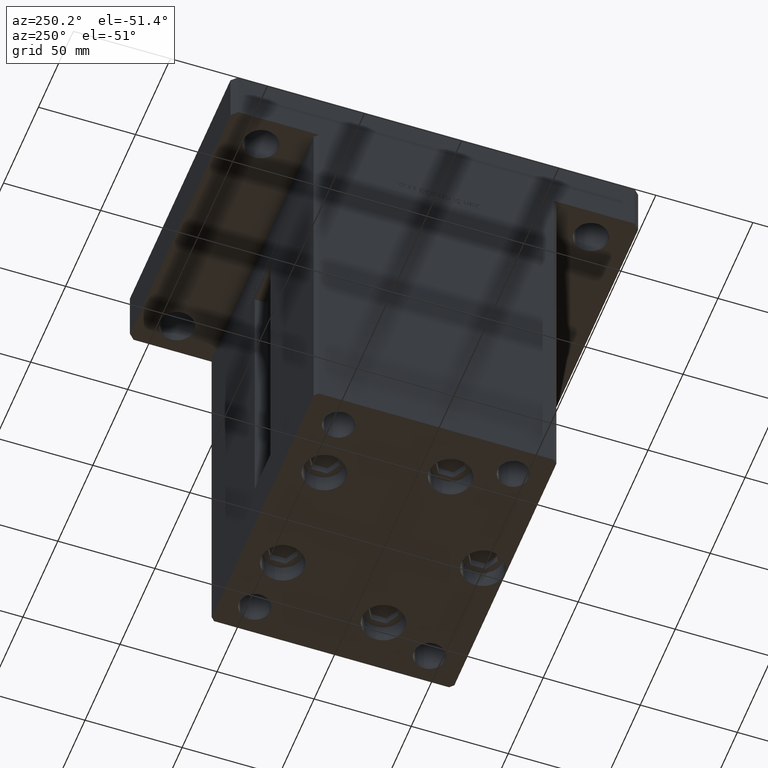
[diagram: clean part render]
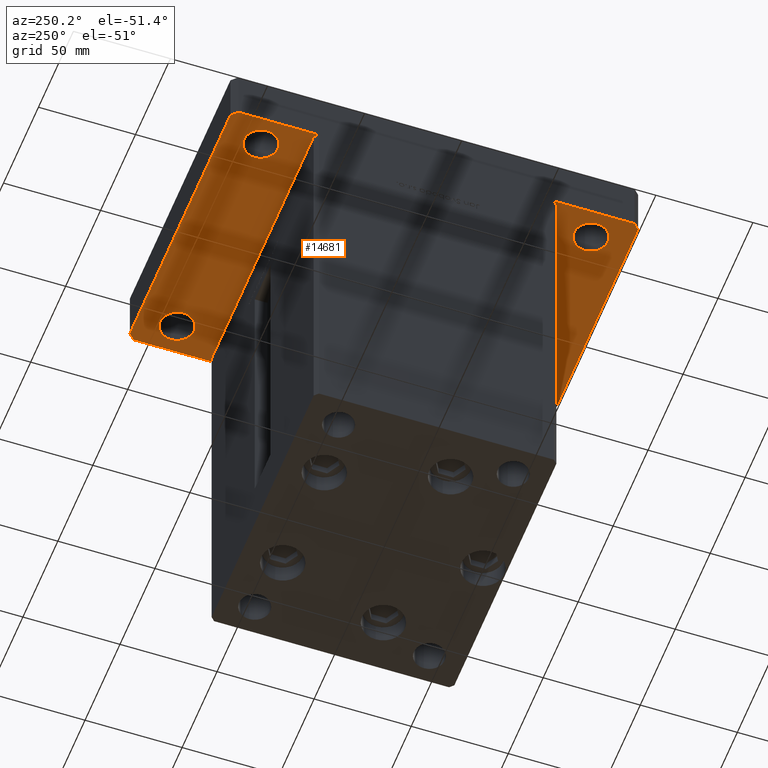
[diagram: same view with one face highlighted and labeled with its STEP entity id]
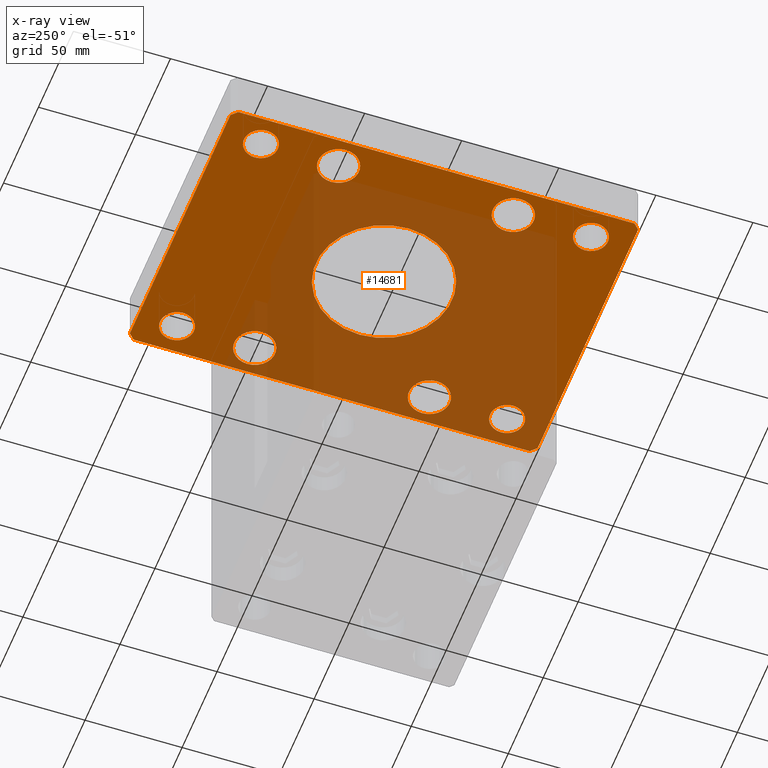
[diagram: x-ray of the same camera — body ghosted, the highlighted face saturated]
A machine part, auxiliary view. The second image highlights one B-rep face of the part: STEP entity #14681.
The next image is the same camera in x-ray: the body ghosted, the highlighted face saturated — about 55% of this face is hidden behind the body in this view.
In plain terms, the highlighted planar face has unit normal (0, 0, 1).
Its self-contained STEP definition (entity closure, byte-faithful):
#143 = AXIS2_PLACEMENT_3D ( 'NONE', #185, #40810, #32197 ) ;
#185 = CARTESIAN_POINT ( 'NONE',  ( 0.000000000000000000, 0.000000000000000000, 0.000000000000000000 ) ) ;
#1168 = CARTESIAN_POINT ( 'NONE',  ( 72.00000000000001421, -104.9999999999999005, 0.000000000000000000 ) ) ;
#1320 = CARTESIAN_POINT ( 'NONE',  ( -71.99999999999998579, -105.0000000000000142, 0.000000000000000000 ) ) ;
#1324 = AXIS2_PLACEMENT_3D ( 'NONE', #18852, #15076, #52226 ) ;
#1383 = CARTESIAN_POINT ( 'NONE',  ( 0.000000000000000000, 0.000000000000000000, 0.000000000000000000 ) ) ;
#1486 = ORIENTED_EDGE ( 'NONE', *, *, #47001, .F. ) ;
#1576 = CARTESIAN_POINT ( 'NONE',  ( 72.00000000000001421, -104.9999999999999005, 0.000000000000000000 ) ) ;
#1708 = VERTEX_POINT ( 'NONE', #3863 ) ;
#1791 = CIRCLE ( 'NONE', #8676, 8.750000000000007105 ) ;
#1823 = ORIENTED_EDGE ( 'NONE', *, *, #5783, .F. ) ;
#2006 = DIRECTION ( 'NONE',  ( 1.000000000000000000, 0.000000000000000000, 0.000000000000000000 ) ) ;
#2317 = VERTEX_POINT ( 'NONE', #38421 ) ;
#2347 = DIRECTION ( 'NONE',  ( 0.000000000000000000, 0.000000000000000000, 1.000000000000000000 ) ) ;
#2425 = VERTEX_POINT ( 'NONE', #47828 ) ;
#2528 = ORIENTED_EDGE ( 'NONE', *, *, #52168, .F. ) ;
#2556 = EDGE_LOOP ( 'NONE', ( #23269, #13661 ) ) ;
#2567 = ORIENTED_EDGE ( 'NONE', *, *, #46142, .T. ) ;
#2625 = DIRECTION ( 'NONE',  ( -1.000000000000000000, -1.927470528863118062E-16, 0.000000000000000000 ) ) ;
#3144 = FACE_BOUND ( 'NONE', #40719, .T. ) ;
#3219 = DIRECTION ( 'NONE',  ( 1.000000000000000000, 0.000000000000000000, 0.000000000000000000 ) ) ;
#3487 = ORIENTED_EDGE ( 'NONE', *, *, #9689, .T. ) ;
#3754 = CARTESIAN_POINT ( 'NONE',  ( -70.50000000000000000, 45.00000000000001421, 0.000000000000000000 ) ) ;
#3863 = CARTESIAN_POINT ( 'NONE',  ( 72.00000000000004263, 105.0000000000000284, 0.000000000000000000 ) ) ;
#4592 = DIRECTION ( 'NONE',  ( -0.7071067811865459074, -0.7071067811865491270, 0.000000000000000000 ) ) ;
#4740 = AXIS2_PLACEMENT_3D ( 'NONE', #23261, #52076, #27828 ) ;
#4862 = CIRCLE ( 'NONE', #34922, 10.50000000000000178 ) ;
#4886 = EDGE_CURVE ( 'NONE', #18157, #36676, #33910, .T. ) ;
#4968 = DIRECTION ( 'NONE',  ( 0.000000000000000000, 0.000000000000000000, 1.000000000000000000 ) ) ;
#4999 = VERTEX_POINT ( 'NONE', #13992 ) ;
#5020 = ORIENTED_EDGE ( 'NONE', *, *, #21086, .F. ) ;
#5466 = EDGE_CURVE ( 'NONE', #35267, #43750, #18704, .T. ) ;
#5586 = CARTESIAN_POINT ( 'NONE',  ( -72.00000000000002842, 105.0000000000000000, 0.000000000000000000 ) ) ;
#5783 = EDGE_CURVE ( 'NONE', #36676, #35267, #23379, .T. ) ;
#6536 = CARTESIAN_POINT ( 'NONE',  ( 75.00000000000001421, 102.0000000000000142, 0.000000000000000000 ) ) ;
#6848 = CARTESIAN_POINT ( 'NONE',  ( 35.00000000000000711, 4.286263797015737285E-15, 0.000000000000000000 ) ) ;
#7187 = PLANE ( 'NONE',  #143 ) ;
#7959 = CARTESIAN_POINT ( 'NONE',  ( 68.74999999999997158, -85.00000000000001421, 0.000000000000000000 ) ) ;
#8596 = ORIENTED_EDGE ( 'NONE', *, *, #19986, .F. ) ;
#8676 = AXIS2_PLACEMENT_3D ( 'NONE', #50140, #46370, #46631 ) ;
#8690 = DIRECTION ( 'NONE',  ( 1.000000000000000000, 0.000000000000000000, 0.000000000000000000 ) ) ;
#8740 = CARTESIAN_POINT ( 'NONE',  ( -35.00000000000000711, 0.000000000000000000, 0.000000000000000000 ) ) ;
#8789 = VERTEX_POINT ( 'NONE', #8740 ) ;
#8897 = ORIENTED_EDGE ( 'NONE', *, *, #23332, .T. ) ;
#9010 = CARTESIAN_POINT ( 'NONE',  ( 59.99999999999997158, -85.00000000000001421, 0.000000000000000000 ) ) ;
#9203 = AXIS2_PLACEMENT_3D ( 'NONE', #10877, #18165, #2006 ) ;
#9225 = DIRECTION ( 'NONE',  ( 1.000000000000000000, 0.000000000000000000, 0.000000000000000000 ) ) ;
#9512 = DIRECTION ( 'NONE',  ( 0.7071067811865459074, 0.7071067811865491270, 0.000000000000000000 ) ) ;
#9689 = EDGE_CURVE ( 'NONE', #27594, #33203, #28444, .T. ) ;
#9694 = CARTESIAN_POINT ( 'NONE',  ( -72.00000000000002842, 105.0000000000000000, 0.000000000000000000 ) ) ;
#10016 = DIRECTION ( 'NONE',  ( 0.000000000000000000, 0.000000000000000000, 1.000000000000000000 ) ) ;
#10271 = EDGE_CURVE ( 'NONE', #33203, #27594, #21624, .T. ) ;
#10487 = DIRECTION ( 'NONE',  ( 1.360567432138672081E-16, -1.000000000000000000, 0.000000000000000000 ) ) ;
#10505 = CARTESIAN_POINT ( 'NONE',  ( 60.00000000000000000, 84.99999999999998579, 0.000000000000000000 ) ) ;
#10877 = CARTESIAN_POINT ( 'NONE',  ( -60.00000000000000000, -45.00000000000000000, 0.000000000000000000 ) ) ;
#11004 = VERTEX_POINT ( 'NONE', #51717 ) ;
#11171 = VECTOR ( 'NONE', #10487, 1000.000000000000000 ) ;
#11654 = DIRECTION ( 'NONE',  ( 1.000000000000000000, 0.000000000000000000, 0.000000000000000000 ) ) ;
#12312 = EDGE_LOOP ( 'NONE', ( #8897, #22282 ) ) ;
#12387 = EDGE_LOOP ( 'NONE', ( #36532, #13746 ) ) ;
#12655 = CIRCLE ( 'NONE', #20366, 10.49999999999999467 ) ;
#12856 = EDGE_LOOP ( 'NONE', ( #43329, #38632 ) ) ;
#12931 = EDGE_CURVE ( 'NONE', #23262, #45827, #24138, .T. ) ;
#13116 = EDGE_CURVE ( 'NONE', #49115, #33794, #1791, .T. ) ;
#13217 = CARTESIAN_POINT ( 'NONE',  ( 49.50000000000000000, 45.00000000000000711, 0.000000000000000000 ) ) ;
#13219 = LINE ( 'NONE', #46080, #26433 ) ;
#13409 = CARTESIAN_POINT ( 'NONE',  ( -71.99999999999998579, -105.0000000000000142, 0.000000000000000000 ) ) ;
#13661 = ORIENTED_EDGE ( 'NONE', *, *, #50588, .T. ) ;
#13746 = ORIENTED_EDGE ( 'NONE', *, *, #33363, .T. ) ;
#13992 = CARTESIAN_POINT ( 'NONE',  ( -68.75000000000000000, 84.99999999999997158, 0.000000000000000000 ) ) ;
#14123 = DIRECTION ( 'NONE',  ( 0.000000000000000000, 0.000000000000000000, 1.000000000000000000 ) ) ;
#14395 = CARTESIAN_POINT ( 'NONE',  ( -60.00000000000000000, 45.00000000000001421, 0.000000000000000000 ) ) ;
#14681 = ADVANCED_FACE ( 'NONE', ( #36226, #28689, #45132, #24659, #36497, #53213, #52946, #41084, #16075, #3144 ), #7187, .F. ) ;
#15008 = CARTESIAN_POINT ( 'NONE',  ( 60.00000000000000000, -45.00000000000000711, 0.000000000000000000 ) ) ;
#15076 = DIRECTION ( 'NONE',  ( 0.000000000000000000, 0.000000000000000000, 1.000000000000000000 ) ) ;
#15308 = VERTEX_POINT ( 'NONE', #23463 ) ;
#15525 = ORIENTED_EDGE ( 'NONE', *, *, #40106, .T. ) ;
#16075 = FACE_BOUND ( 'NONE', #12387, .T. ) ;
#16316 = CARTESIAN_POINT ( 'NONE',  ( -49.49999999999999289, 45.00000000000001421, 0.000000000000000000 ) ) ;
#16363 = ORIENTED_EDGE ( 'NONE', *, *, #22249, .T. ) ;
#16824 = CARTESIAN_POINT ( 'NONE',  ( -60.00000000000000711, 84.99999999999997158, 0.000000000000000000 ) ) ;
#17037 = DIRECTION ( 'NONE',  ( 0.000000000000000000, 0.000000000000000000, 1.000000000000000000 ) ) ;
#17284 = AXIS2_PLACEMENT_3D ( 'NONE', #18416, #30787, #19469 ) ;
#17462 = VECTOR ( 'NONE', #9512, 1000.000000000000114 ) ;
#17650 = CIRCLE ( 'NONE', #1324, 10.50000000000000178 ) ;
#17793 = DIRECTION ( 'NONE',  ( -1.000000000000000000, 0.000000000000000000, 0.000000000000000000 ) ) ;
#17964 = DIRECTION ( 'NONE',  ( 0.000000000000000000, 0.000000000000000000, -1.000000000000000000 ) ) ;
#18157 = VERTEX_POINT ( 'NONE', #5586 ) ;
#18165 = DIRECTION ( 'NONE',  ( 0.000000000000000000, 0.000000000000000000, 1.000000000000000000 ) ) ;
#18255 = DIRECTION ( 'NONE',  ( 0.000000000000000000, 0.000000000000000000, 1.000000000000000000 ) ) ;
#18416 = CARTESIAN_POINT ( 'NONE',  ( -60.00000000000000000, -45.00000000000000000, 0.000000000000000000 ) ) ;
#18421 = AXIS2_PLACEMENT_3D ( 'NONE', #15008, #18255, #35444 ) ;
#18527 = CIRCLE ( 'NONE', #51199, 8.750000000000007105 ) ;
#18704 = LINE ( 'NONE', #38619, #29188 ) ;
#18852 = CARTESIAN_POINT ( 'NONE',  ( -60.00000000000000000, 45.00000000000001421, 0.000000000000000000 ) ) ;
#19168 = LINE ( 'NONE', #6536, #25435 ) ;
#19469 = DIRECTION ( 'NONE',  ( 1.000000000000000000, 0.000000000000000000, 0.000000000000000000 ) ) ;
#19986 = EDGE_CURVE ( 'NONE', #52441, #2425, #41546, .T. ) ;
#19999 = ORIENTED_EDGE ( 'NONE', *, *, #36018, .T. ) ;
#20109 = EDGE_LOOP ( 'NONE', ( #5020, #24838 ) ) ;
#20366 = AXIS2_PLACEMENT_3D ( 'NONE', #30695, #47131, #30172 ) ;
#20726 = AXIS2_PLACEMENT_3D ( 'NONE', #9010, #50464, #29978 ) ;
#21086 = EDGE_CURVE ( 'NONE', #8789, #40932, #51049, .T. ) ;
#21434 = CARTESIAN_POINT ( 'NONE',  ( -75.00000000000001421, 102.0000000000000000, 0.000000000000000000 ) ) ;
#21624 = CIRCLE ( 'NONE', #25796, 8.750000000000007105 ) ;
#22249 = EDGE_CURVE ( 'NONE', #28810, #11004, #45058, .T. ) ;
#22282 = ORIENTED_EDGE ( 'NONE', *, *, #37728, .T. ) ;
#22488 = CARTESIAN_POINT ( 'NONE',  ( -49.49999999999999289, -45.00000000000000000, 0.000000000000000000 ) ) ;
#22713 = CIRCLE ( 'NONE', #47662, 8.750000000000007105 ) ;
#22822 = VECTOR ( 'NONE', #2625, 1000.000000000000000 ) ;
#23261 = CARTESIAN_POINT ( 'NONE',  ( 60.00000000000000000, 84.99999999999998579, 0.000000000000000000 ) ) ;
#23262 = VERTEX_POINT ( 'NONE', #38856 ) ;
#23269 = ORIENTED_EDGE ( 'NONE', *, *, #12931, .T. ) ;
#23332 = EDGE_CURVE ( 'NONE', #4999, #2317, #22713, .T. ) ;
#23379 = LINE ( 'NONE', #44122, #11171 ) ;
#23391 = CARTESIAN_POINT ( 'NONE',  ( 51.24999999999995737, -85.00000000000001421, 0.000000000000000000 ) ) ;
#23463 = CARTESIAN_POINT ( 'NONE',  ( 75.00000000000001421, 102.0000000000000142, 0.000000000000000000 ) ) ;
#23695 = EDGE_LOOP ( 'NONE', ( #19999, #15525 ) ) ;
#24138 = CIRCLE ( 'NONE', #17284, 10.50000000000000178 ) ;
#24659 = FACE_BOUND ( 'NONE', #45527, .T. ) ;
#24754 = DIRECTION ( 'NONE',  ( 0.000000000000000000, 0.000000000000000000, 1.000000000000000000 ) ) ;
#24838 = ORIENTED_EDGE ( 'NONE', *, *, #40574, .F. ) ;
#25435 = VECTOR ( 'NONE', #35565, 1000.000000000000000 ) ;
#25509 = CIRCLE ( 'NONE', #9203, 10.50000000000000178 ) ;
#25762 = VECTOR ( 'NONE', #4592, 1000.000000000000114 ) ;
#25796 = AXIS2_PLACEMENT_3D ( 'NONE', #29591, #24754, #45771 ) ;
#25929 = VERTEX_POINT ( 'NONE', #3754 ) ;
#25938 = ORIENTED_EDGE ( 'NONE', *, *, #5466, .F. ) ;
#26433 = VECTOR ( 'NONE', #50909, 1000.000000000000000 ) ;
#27001 = VERTEX_POINT ( 'NONE', #31694 ) ;
#27095 = DIRECTION ( 'NONE',  ( 1.000000000000000000, 0.000000000000000000, 0.000000000000000000 ) ) ;
#27103 = CARTESIAN_POINT ( 'NONE',  ( -74.99999999999998579, -102.0000000000000142, 0.000000000000000000 ) ) ;
#27594 = VERTEX_POINT ( 'NONE', #23391 ) ;
#27740 = CARTESIAN_POINT ( 'NONE',  ( 49.50000000000000000, -45.00000000000000711, 0.000000000000000000 ) ) ;
#27828 = DIRECTION ( 'NONE',  ( 1.000000000000000000, 0.000000000000000000, 0.000000000000000000 ) ) ;
#28331 = CARTESIAN_POINT ( 'NONE',  ( 60.00000000000000000, 45.00000000000000711, 0.000000000000000000 ) ) ;
#28444 = CIRCLE ( 'NONE', #20726, 8.750000000000007105 ) ;
#28689 = FACE_OUTER_BOUND ( 'NONE', #34861, .T. ) ;
#28734 = CIRCLE ( 'NONE', #51124, 8.750000000000007105 ) ;
#28810 = VERTEX_POINT ( 'NONE', #27740 ) ;
#29188 = VECTOR ( 'NONE', #35107, 1000.000000000000114 ) ;
#29591 = CARTESIAN_POINT ( 'NONE',  ( 59.99999999999997158, -85.00000000000001421, 0.000000000000000000 ) ) ;
#29635 = AXIS2_PLACEMENT_3D ( 'NONE', #28331, #17037, #8690 ) ;
#29978 = DIRECTION ( 'NONE',  ( 1.000000000000000000, 0.000000000000000000, 0.000000000000000000 ) ) ;
#30147 = CARTESIAN_POINT ( 'NONE',  ( -51.24999999999996447, -85.00000000000001421, 0.000000000000000000 ) ) ;
#30172 = DIRECTION ( 'NONE',  ( 1.000000000000000000, 0.000000000000000000, 0.000000000000000000 ) ) ;
#30695 = CARTESIAN_POINT ( 'NONE',  ( 60.00000000000000000, 45.00000000000000711, 0.000000000000000000 ) ) ;
#30787 = DIRECTION ( 'NONE',  ( 0.000000000000000000, 0.000000000000000000, 1.000000000000000000 ) ) ;
#30861 = CARTESIAN_POINT ( 'NONE',  ( 0.000000000000000000, 0.000000000000000000, 0.000000000000000000 ) ) ;
#31478 = DIRECTION ( 'NONE',  ( 0.000000000000000000, 0.000000000000000000, 1.000000000000000000 ) ) ;
#31694 = CARTESIAN_POINT ( 'NONE',  ( 51.24999999999998579, 84.99999999999998579, 0.000000000000000000 ) ) ;
#31950 = LINE ( 'NONE', #48383, #22822 ) ;
#32060 = VERTEX_POINT ( 'NONE', #16316 ) ;
#32095 = CARTESIAN_POINT ( 'NONE',  ( -60.00000000000000711, 84.99999999999997158, 0.000000000000000000 ) ) ;
#32197 = DIRECTION ( 'NONE',  ( 1.000000000000000000, 0.000000000000000000, -0.000000000000000000 ) ) ;
#33203 = VERTEX_POINT ( 'NONE', #7959 ) ;
#33363 = EDGE_CURVE ( 'NONE', #32060, #25929, #4862, .T. ) ;
#33497 = DIRECTION ( 'NONE',  ( 1.000000000000000000, 0.000000000000000000, 0.000000000000000000 ) ) ;
#33794 = VERTEX_POINT ( 'NONE', #30147 ) ;
#33910 = LINE ( 'NONE', #9694, #25762 ) ;
#34694 = CIRCLE ( 'NONE', #41591, 8.750000000000007105 ) ;
#34762 = CARTESIAN_POINT ( 'NONE',  ( -59.99999999999997158, -85.00000000000001421, 0.000000000000000000 ) ) ;
#34861 = EDGE_LOOP ( 'NONE', ( #36804, #25938, #1823, #46836, #52708, #1486, #2528, #8596 ) ) ;
#34922 = AXIS2_PLACEMENT_3D ( 'NONE', #14395, #14123, #39140 ) ;
#35107 = DIRECTION ( 'NONE',  ( 0.7071067811865474617, -0.7071067811865474617, 0.000000000000000000 ) ) ;
#35179 = ORIENTED_EDGE ( 'NONE', *, *, #44621, .T. ) ;
#35267 = VERTEX_POINT ( 'NONE', #27103 ) ;
#35444 = DIRECTION ( 'NONE',  ( 1.000000000000000000, 0.000000000000000000, 0.000000000000000000 ) ) ;
#35565 = DIRECTION ( 'NONE',  ( -0.7071067811865426878, 0.7071067811865524577, 0.000000000000000000 ) ) ;
#36018 = EDGE_CURVE ( 'NONE', #45035, #50238, #12655, .T. ) ;
#36226 = FACE_BOUND ( 'NONE', #20109, .T. ) ;
#36383 = EDGE_CURVE ( 'NONE', #43750, #52441, #42490, .T. ) ;
#36489 = CIRCLE ( 'NONE', #29635, 10.49999999999999467 ) ;
#36497 = FACE_BOUND ( 'NONE', #12312, .T. ) ;
#36532 = ORIENTED_EDGE ( 'NONE', *, *, #46083, .T. ) ;
#36676 = VERTEX_POINT ( 'NONE', #21434 ) ;
#36680 = CIRCLE ( 'NONE', #50471, 10.49999999999999467 ) ;
#36804 = ORIENTED_EDGE ( 'NONE', *, *, #36383, .F. ) ;
#36982 = EDGE_LOOP ( 'NONE', ( #16363, #42646 ) ) ;
#37523 = VERTEX_POINT ( 'NONE', #37591 ) ;
#37591 = CARTESIAN_POINT ( 'NONE',  ( 68.75000000000000000, 84.99999999999998579, 0.000000000000000000 ) ) ;
#37728 = EDGE_CURVE ( 'NONE', #2317, #4999, #34694, .T. ) ;
#38421 = CARTESIAN_POINT ( 'NONE',  ( -51.25000000000000000, 84.99999999999997158, 0.000000000000000000 ) ) ;
#38619 = CARTESIAN_POINT ( 'NONE',  ( -74.99999999999998579, -102.0000000000000142, 0.000000000000000000 ) ) ;
#38632 = ORIENTED_EDGE ( 'NONE', *, *, #40276, .T. ) ;
#38856 = CARTESIAN_POINT ( 'NONE',  ( -70.50000000000000000, -45.00000000000000000, 0.000000000000000000 ) ) ;
#39140 = DIRECTION ( 'NONE',  ( 1.000000000000000000, 0.000000000000000000, 0.000000000000000000 ) ) ;
#39214 = CARTESIAN_POINT ( 'NONE',  ( 60.00000000000000000, -45.00000000000000711, 0.000000000000000000 ) ) ;
#40106 = EDGE_CURVE ( 'NONE', #50238, #45035, #36489, .T. ) ;
#40276 = EDGE_CURVE ( 'NONE', #33794, #49115, #28734, .T. ) ;
#40574 = EDGE_CURVE ( 'NONE', #40932, #8789, #46810, .T. ) ;
#40719 = EDGE_LOOP ( 'NONE', ( #3487, #46307 ) ) ;
#40762 = AXIS2_PLACEMENT_3D ( 'NONE', #30861, #17964, #47295 ) ;
#40810 = DIRECTION ( 'NONE',  ( 0.000000000000000000, 0.000000000000000000, 1.000000000000000000 ) ) ;
#40932 = VERTEX_POINT ( 'NONE', #6848 ) ;
#41084 = FACE_BOUND ( 'NONE', #23695, .T. ) ;
#41546 = LINE ( 'NONE', #1168, #17462 ) ;
#41591 = AXIS2_PLACEMENT_3D ( 'NONE', #16824, #4968, #33497 ) ;
#41598 = AXIS2_PLACEMENT_3D ( 'NONE', #1383, #45547, #17793 ) ;
#42490 = LINE ( 'NONE', #1320, #47046 ) ;
#42646 = ORIENTED_EDGE ( 'NONE', *, *, #51462, .T. ) ;
#43204 = EDGE_CURVE ( 'NONE', #1708, #18157, #31950, .T. ) ;
#43280 = DIRECTION ( 'NONE',  ( 1.000000000000000000, 7.709882115452476194E-16, 0.000000000000000000 ) ) ;
#43329 = ORIENTED_EDGE ( 'NONE', *, *, #13116, .T. ) ;
#43750 = VERTEX_POINT ( 'NONE', #13409 ) ;
#44122 = CARTESIAN_POINT ( 'NONE',  ( -75.00000000000001421, 102.0000000000000000, 0.000000000000000000 ) ) ;
#44322 = CARTESIAN_POINT ( 'NONE',  ( 70.50000000000000000, 45.00000000000000711, 0.000000000000000000 ) ) ;
#44621 = EDGE_CURVE ( 'NONE', #37523, #27001, #48536, .T. ) ;
#45035 = VERTEX_POINT ( 'NONE', #13217 ) ;
#45058 = CIRCLE ( 'NONE', #18421, 10.49999999999999467 ) ;
#45132 = FACE_BOUND ( 'NONE', #12856, .T. ) ;
#45527 = EDGE_LOOP ( 'NONE', ( #2567, #35179 ) ) ;
#45547 = DIRECTION ( 'NONE',  ( 0.000000000000000000, 0.000000000000000000, -1.000000000000000000 ) ) ;
#45764 = CARTESIAN_POINT ( 'NONE',  ( -68.74999999999997158, -85.00000000000001421, 0.000000000000000000 ) ) ;
#45771 = DIRECTION ( 'NONE',  ( 1.000000000000000000, 0.000000000000000000, 0.000000000000000000 ) ) ;
#45827 = VERTEX_POINT ( 'NONE', #22488 ) ;
#46080 = CARTESIAN_POINT ( 'NONE',  ( 75.00000000000000000, -101.9999999999999005, 0.000000000000000000 ) ) ;
#46083 = EDGE_CURVE ( 'NONE', #25929, #32060, #17650, .T. ) ;
#46142 = EDGE_CURVE ( 'NONE', #27001, #37523, #18527, .T. ) ;
#46307 = ORIENTED_EDGE ( 'NONE', *, *, #10271, .T. ) ;
#46370 = DIRECTION ( 'NONE',  ( 0.000000000000000000, 0.000000000000000000, 1.000000000000000000 ) ) ;
#46631 = DIRECTION ( 'NONE',  ( 1.000000000000000000, 0.000000000000000000, 0.000000000000000000 ) ) ;
#46810 = CIRCLE ( 'NONE', #40762, 35.00000000000000711 ) ;
#46836 = ORIENTED_EDGE ( 'NONE', *, *, #4886, .F. ) ;
#47001 = EDGE_CURVE ( 'NONE', #15308, #1708, #19168, .T. ) ;
#47046 = VECTOR ( 'NONE', #43280, 1000.000000000000000 ) ;
#47131 = DIRECTION ( 'NONE',  ( 0.000000000000000000, 0.000000000000000000, 1.000000000000000000 ) ) ;
#47295 = DIRECTION ( 'NONE',  ( -1.000000000000000000, 0.000000000000000000, 0.000000000000000000 ) ) ;
#47662 = AXIS2_PLACEMENT_3D ( 'NONE', #32095, #48535, #11654 ) ;
#47828 = CARTESIAN_POINT ( 'NONE',  ( 75.00000000000000000, -101.9999999999999005, 0.000000000000000000 ) ) ;
#48383 = CARTESIAN_POINT ( 'NONE',  ( 72.00000000000004263, 105.0000000000000284, 0.000000000000000000 ) ) ;
#48535 = DIRECTION ( 'NONE',  ( 0.000000000000000000, 0.000000000000000000, 1.000000000000000000 ) ) ;
#48536 = CIRCLE ( 'NONE', #4740, 8.750000000000007105 ) ;
#49115 = VERTEX_POINT ( 'NONE', #45764 ) ;
#50140 = CARTESIAN_POINT ( 'NONE',  ( -59.99999999999997158, -85.00000000000001421, 0.000000000000000000 ) ) ;
#50238 = VERTEX_POINT ( 'NONE', #44322 ) ;
#50464 = DIRECTION ( 'NONE',  ( 0.000000000000000000, 0.000000000000000000, 1.000000000000000000 ) ) ;
#50471 = AXIS2_PLACEMENT_3D ( 'NONE', #39214, #2347, #27095 ) ;
#50588 = EDGE_CURVE ( 'NONE', #45827, #23262, #25509, .T. ) ;
#50909 = DIRECTION ( 'NONE',  ( 6.802837160693364103E-17, 1.000000000000000000, 0.000000000000000000 ) ) ;
#51049 = CIRCLE ( 'NONE', #41598, 35.00000000000000711 ) ;
#51124 = AXIS2_PLACEMENT_3D ( 'NONE', #34762, #10016, #9225 ) ;
#51199 = AXIS2_PLACEMENT_3D ( 'NONE', #10505, #31478, #3219 ) ;
#51462 = EDGE_CURVE ( 'NONE', #11004, #28810, #36680, .T. ) ;
#51717 = CARTESIAN_POINT ( 'NONE',  ( 70.50000000000000000, -45.00000000000000711, 0.000000000000000000 ) ) ;
#52076 = DIRECTION ( 'NONE',  ( 0.000000000000000000, 0.000000000000000000, 1.000000000000000000 ) ) ;
#52168 = EDGE_CURVE ( 'NONE', #2425, #15308, #13219, .T. ) ;
#52226 = DIRECTION ( 'NONE',  ( 1.000000000000000000, 0.000000000000000000, 0.000000000000000000 ) ) ;
#52441 = VERTEX_POINT ( 'NONE', #1576 ) ;
#52708 = ORIENTED_EDGE ( 'NONE', *, *, #43204, .F. ) ;
#52946 = FACE_BOUND ( 'NONE', #36982, .T. ) ;
#53213 = FACE_BOUND ( 'NONE', #2556, .T. ) ;